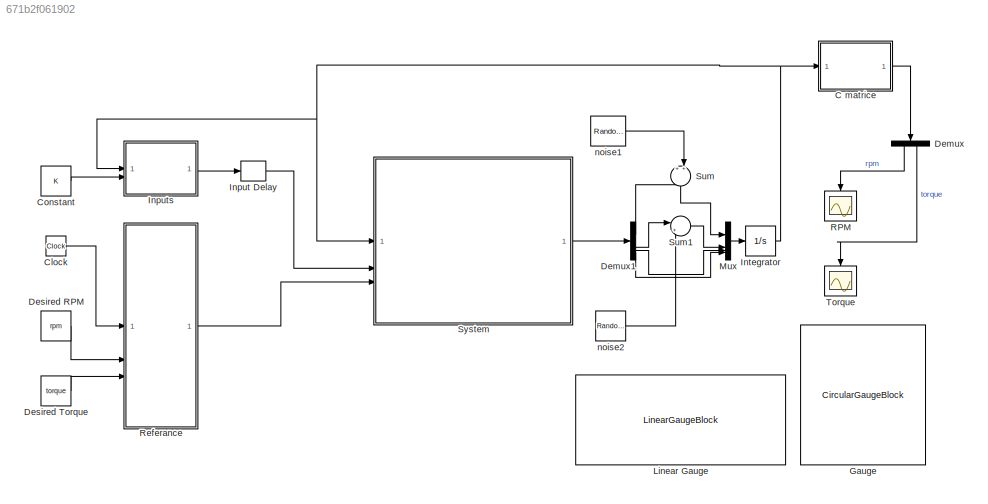
MODEL slx_671b2f061902
KIND model
CONFIG AbsTol = auto
CONFIG EnableMultiTasking = off
CONFIG FixedStep = 1e-3
CONFIG InitFcn = lqr_cont;\nref_calc;\n
CONFIG MaxStep = auto
CONFIG MinStep = auto
CONFIG RelTol = 1e-3
CONFIG SampleTimeConstraint = Unconstrained
CONFIG SolverName = FixedStepAuto
CONFIG StartTime = 0.0
CONFIG StopTime = 250
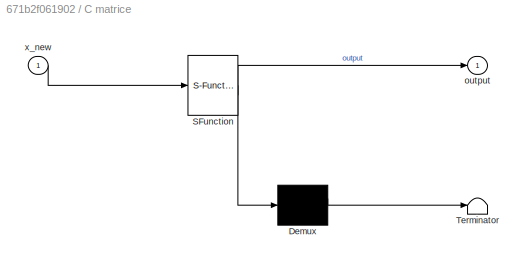
BLOCK [SubSystem] C matrice
  ErrorFcn = Stateflow.Translate.translate
  PermitHierarchicalResolution = ExplicitOnly
  SFBlockType = MATLAB Function
  TreatAsAtomicUnit = on
BLOCK [Demux] C matrice/ Demux 
  Outputs = 1
BLOCK [S-Function] C matrice/ SFunction 
  EnableBusSupport = on
  FunctionName = sf_sfun
  PortCounts = [1 2]
  SFcnIsStateOwnerBlock = off
  SFunctionDeploymentMode = off
  Tag = Stateflow S-Function 4
BLOCK [Terminator] C matrice/ Terminator 
BLOCK [Outport] C matrice/output
BLOCK [Inport] C matrice/x_new
BLOCK [Clock] Clock
BLOCK [Constant] Constant
  Value = K
  VectorParams1D = off
BLOCK [Demux] Demux
  NameLocation = left
  Outputs = 2
BLOCK [Demux] Demux1
BLOCK [Constant] Desired RPM
  Value = rpm
  VectorParams1D = off
BLOCK [Constant] Desired Torque
  Value = torque
  VectorParams1D = off
BLOCK [CircularGaugeBlock] Gauge
  ScaleMax = 8000
  TickInterval = 1000
BLOCK [TransportDelay] Input Delay
  DelayTime = 0.3
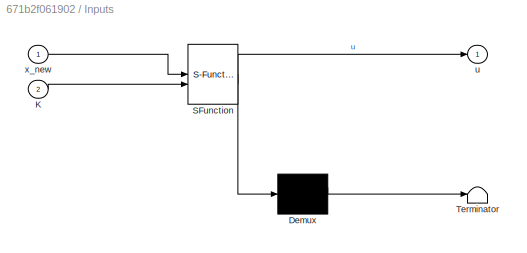
BLOCK [SubSystem] Inputs
  ErrorFcn = Stateflow.Translate.translate
  PermitHierarchicalResolution = ExplicitOnly
  SFBlockType = MATLAB Function
  TreatAsAtomicUnit = on
BLOCK [Demux] Inputs/ Demux 
  Outputs = 1
BLOCK [S-Function] Inputs/ SFunction 
  EnableBusSupport = on
  FunctionName = sf_sfun
  PortCounts = [2 2]
  SFcnIsStateOwnerBlock = off
  SFunctionDeploymentMode = off
  Tag = Stateflow S-Function 3
BLOCK [Terminator] Inputs/ Terminator 
BLOCK [Inport] Inputs/K
  Port = 2
BLOCK [Outport] Inputs/u
BLOCK [Inport] Inputs/x_new
BLOCK [Integrator] Integrator
  InitialCondition = [0;0;0;0]
BLOCK [LinearGaugeBlock] Linear Gauge
  LabelPosition = Bottom
  ScaleMax = 50
BLOCK [Mux] Mux
  DisplayOption = bar
BLOCK [Scope] RPM
  Floating = off
  NameLocation = left
  NumInputPorts = 1
  ScopeSpecificationString = Simulink.scopes.TimeScopeBlockCfg('CurrentConfiguration', extmgr.ConfigurationSet(extmgr.Configuration('Core','General UI',true),extmgr.Configuration('Core','Source UI',true),extmgr.Configuration('Sources','WiredSimulink',true,'DataLoggingVariableName','ScopeData1'),extmgr.Configuration('Visuals','Time Domain',true,'SerializedDisplays',{struct('MinYLimReal','-250.38083','MaxYLimReal','2253.42744',...<+1544ch>
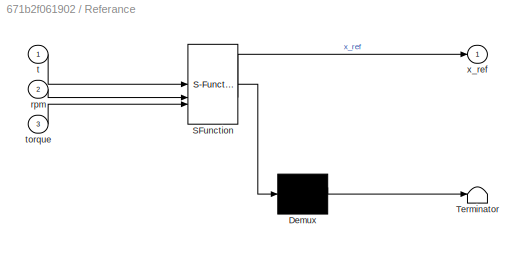
BLOCK [SubSystem] Referance
  ErrorFcn = Stateflow.Translate.translate
  PermitHierarchicalResolution = ExplicitOnly
  SFBlockType = MATLAB Function
  TreatAsAtomicUnit = on
BLOCK [Demux] Referance/ Demux 
  Outputs = 1
BLOCK [S-Function] Referance/ SFunction 
  EnableBusSupport = on
  FunctionName = sf_sfun
  PortCounts = [3 2]
  SFcnIsStateOwnerBlock = off
  SFunctionDeploymentMode = off
  Tag = Stateflow S-Function 1
BLOCK [Terminator] Referance/ Terminator 
BLOCK [Inport] Referance/rpm
  Port = 2
BLOCK [Inport] Referance/t
BLOCK [Inport] Referance/torque
  Port = 3
BLOCK [Outport] Referance/x_ref
BLOCK [Sum] Sum
  Inputs = ++|
  NameLocation = left
BLOCK [Sum] Sum1
  Inputs = |++
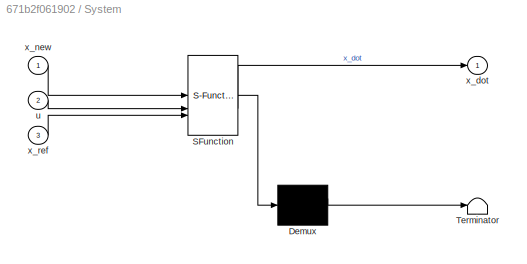
BLOCK [SubSystem] System
  ErrorFcn = Stateflow.Translate.translate
  PermitHierarchicalResolution = ExplicitOnly
  SFBlockType = MATLAB Function
  TreatAsAtomicUnit = on
BLOCK [Demux] System/ Demux 
  Outputs = 1
BLOCK [S-Function] System/ SFunction 
  EnableBusSupport = on
  FunctionName = sf_sfun
  PortCounts = [3 2]
  SFcnIsStateOwnerBlock = off
  SFunctionDeploymentMode = off
  Tag = Stateflow S-Function 2
BLOCK [Terminator] System/ Terminator 
BLOCK [Inport] System/u
  Port = 2
BLOCK [Outport] System/x_dot
BLOCK [Inport] System/x_new
BLOCK [Inport] System/x_ref
  Port = 3
BLOCK [Scope] Torque
  Floating = off
  NameLocation = left
  NumInputPorts = 1
  ScopeSpecificationString = Simulink.scopes.TimeScopeBlockCfg('CurrentConfiguration', extmgr.ConfigurationSet(extmgr.Configuration('Core','General UI',true),extmgr.Configuration('Core','Source UI',true),extmgr.Configuration('Sources','WiredSimulink',true,'DataLoggingVariableName','ScopeData5'),extmgr.Configuration('Visuals','Time Domain',true,'SerializedDisplays',{struct('MinYLimReal','-29.52108','MaxYLimReal','25.50223','YL...<+1562ch>
BLOCK [RandomNumber] noise1
  Mean = 100
  SampleTime = 0.1
  Variance = 5
  VectorParams1D = off
BLOCK [RandomNumber] noise2
  Mean = 1
  SampleTime = 0.1
  VectorParams1D = off
LINE C matrice:1 -> Demux:1
LINE Clock:1 -> Referance:1
LINE Constant:1 -> Inputs:2
LINE Demux1:1 -> Sum:1
LINE Demux1:2 -> Sum1:1
LINE Demux1:3 -> Mux:3
LINE Demux1:4 -> Mux:4
LINE Demux:1 -> RPM:1
LINE Demux:2 -> Torque:1
LINE Desired RPM:1 -> Referance:2
LINE Desired Torque:1 -> Referance:3
LINE Input Delay:1 -> System:2
LINE Inputs:1 -> Input Delay:1
NET Integrator:1 -> C matrice:1, Inputs:1, System:1
LINE Mux:1 -> Integrator:1
LINE Referance:1 -> System:3
LINE Sum1:1 -> Mux:2
LINE Sum:1 -> Mux:1
LINE System:1 -> Demux1:1
LINE noise1:1 -> Sum:2
LINE noise2:1 -> Sum1:2
note: NET lines group one-source signal fan-out (src -> all destinations, sorted); 1:1 wires keep LINE
CHART Referance states=1 transitions=1
  STATE_LABEL 'eML_blk_kernel()'
  STATE_LABEL 'SCRIPT:\nfunction x_ref = fcn(t,rpm,torque)\n\n\n\nx_ref =[0; 0; rpm(1,1); torque(1,1)];\n\n\nif t>25\n    if t<65\n        x_ref =[0; 0; rpm(1,2); torque(1,2)];       \n    end\nend\n\nif t>90\n    if t<125\n        x_ref =[0; 0; rpm(1,3); torque(1,3)];       \n    end\nend\n\nif t>150\n    if t<190\n        x_ref =[0; 0; rpm(1,2); torque(1,2)];       \n    end\nend\n\nif t>220\n    \n        x_ref =[0; 0; rpm(1,2); torque(...<+54ch>'
CHART System states=1 transitions=1
  STATE_LABEL 'eML_blk_kernel()'
  STATE_LABEL 'SCRIPT:\nfunction x_dot = fcn(x_new,u,x_ref)\n\n\nA = [-1, 0;\n     0, -1];\n     \n\nA_new = [A, zeros(2,1), zeros(2,1);\n         1, 0, 0, 0;\n         0, 1, 0, 0];\n\nB_new = [1, 0;\n         0, 1;\n         0, 0;\n         0, 0];\n\nE_ref = [0, 0,0,0;\n         0, 0,0,0;\n         0, 0,-1,0;\n         0,0,0, -1];\n\nx_dot=A_new*x_new + B_new*u + E_ref*x_ref;\nend\n'
CHART Inputs states=1 transitions=1
  STATE_LABEL 'eML_blk_kernel()'
  STATE_LABEL 'SCRIPT:\nfunction u = fcn(x_new,K)\n\n\nu= -K*x_new;\nend\n'
CHART C matrice states=1 transitions=1
  STATE_LABEL 'eML_blk_kernel()'
  STATE_LABEL 'SCRIPT:\nfunction output = fcn(x_new)\n\noutput=zeros(2,1);\noutput(1,1) = 17.54*x_new(1)-3.18*x_new(2);\noutput(2,1) = 1.16*x_new(1)+2.32*x_new(2);\n\n\nend\n'
CHART  states=0 transitions=0
CHART  states=0 transitions=0
CHART  states=0 transitions=0
CHART  states=0 transitions=0
